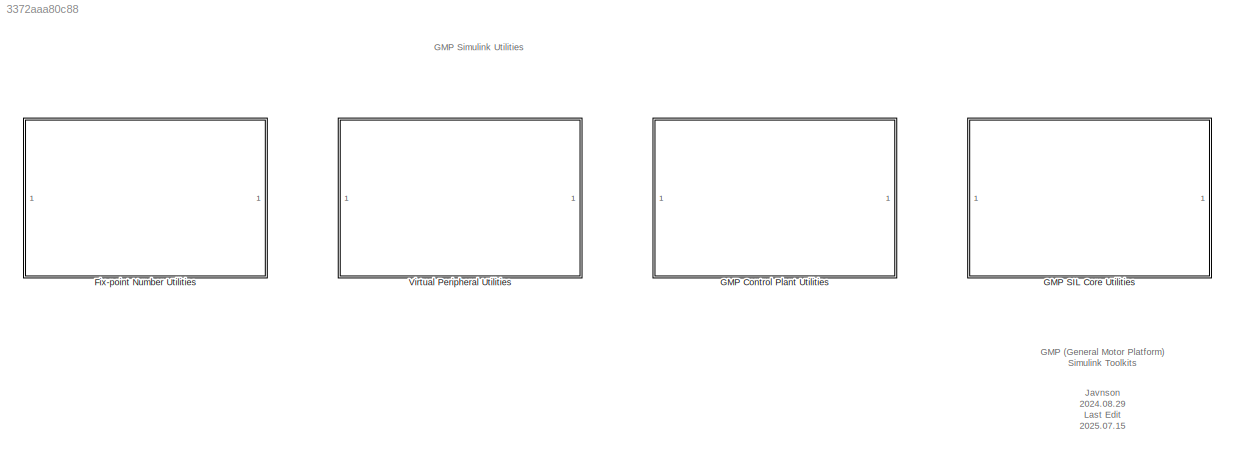
MODEL slx_3372aaa80c88
KIND library
CONFIG AbsTol = auto
CONFIG EnableMultiTasking = off
CONFIG FixedStep = auto
CONFIG MaxStep = auto
CONFIG MinStep = auto
CONFIG RelTol = 1e-3
CONFIG SampleTimeConstraint = Unconstrained
CONFIG SolverName = VariableStepAuto
CONFIG StartTime = 0.0
CONFIG StopTime = 10.0
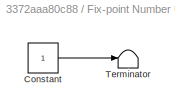
BLOCK [SubSystem] Fix-point Number Utilities
  OpenFcn = gmp_fp_utilities
BLOCK [Constant] Fix-point Number Utilities/Constant
  Commented = on
BLOCK [Terminator] Fix-point Number Utilities/Terminator
  Commented = on
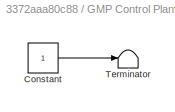
BLOCK [SubSystem] GMP Control Plant Utilities
  OpenFcn = gmp_std_model_pck
BLOCK [Constant] GMP Control Plant Utilities/Constant
  Commented = on
BLOCK [Terminator] GMP Control Plant Utilities/Terminator
  Commented = on
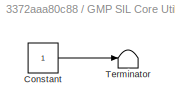
BLOCK [SubSystem] GMP SIL Core Utilities
  OpenFcn = gmp_sil_core_pack
BLOCK [Constant] GMP SIL Core Utilities/Constant
  Commented = on
BLOCK [Terminator] GMP SIL Core Utilities/Terminator
  Commented = on
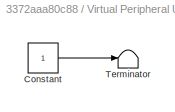
BLOCK [SubSystem] Virtual Peripheral Utilities
  OpenFcn = gmp_peripheral_utilities
BLOCK [Constant] Virtual Peripheral Utilities/Constant
  Commented = on
BLOCK [Terminator] Virtual Peripheral Utilities/Terminator
  Commented = on
ANNOTATION (root): GMP Simulink Utilities
ANNOTATION (root): GMP (General Motor Platform) Simulink Toolkits
ANNOTATION (root): Javnson 2024.08.29 Last Edit 2025.07.15
LINE Fix-point Number Utilities/Constant:1 -> Fix-point Number Utilities/Terminator:1
LINE GMP Control Plant Utilities/Constant:1 -> GMP Control Plant Utilities/Terminator:1
LINE GMP SIL Core Utilities/Constant:1 -> GMP SIL Core Utilities/Terminator:1
LINE Virtual Peripheral Utilities/Constant:1 -> Virtual Peripheral Utilities/Terminator:1
